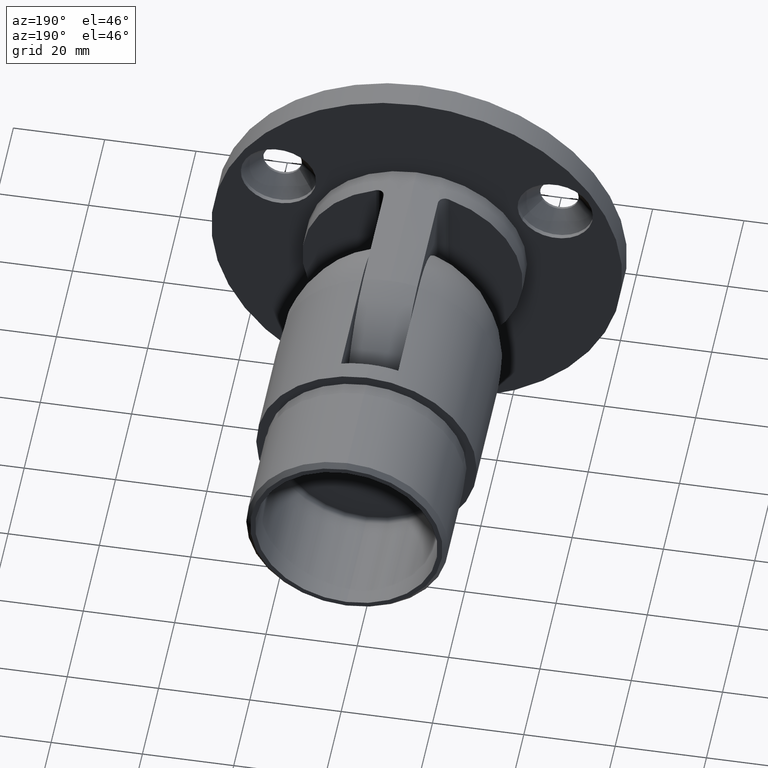
[diagram: clean part render]
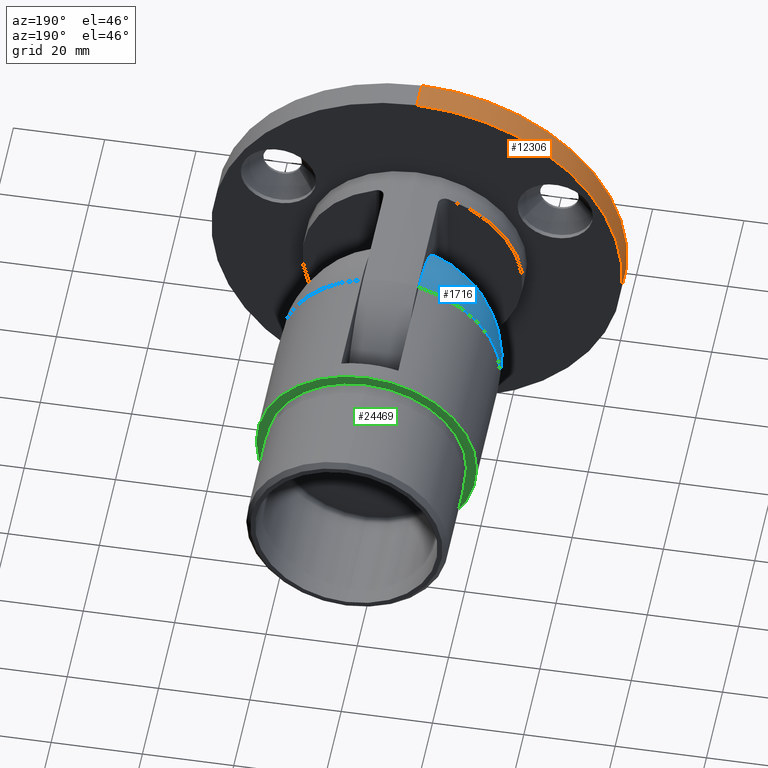
[diagram: same view with three faces highlighted in distinct colors, each labeled with its STEP entity id]
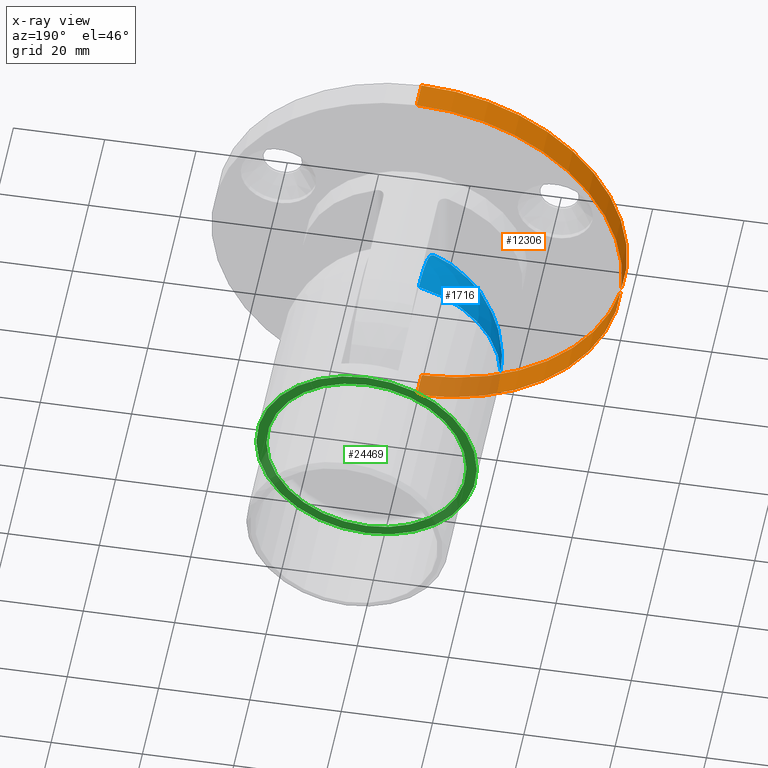
[diagram: x-ray of the same camera — body ghosted, the three highlighted faces saturated]
A machine part, auxiliary view with three faces highlighted in distinct colors.
The next image is the same camera in x-ray (body ghosted, the three faces saturated) — at least one of them is partly hidden behind the body in this view.
Their STEP definitions:

[orange] entity #12306 — the highlighted cylindrical surface (partial cylindrical patch) has radius 45 mm, axis along (-0, -1, -0).
#503 = FACE_OUTER_BOUND ( 'NONE', #15593, .T. ) ;
#1247 = EDGE_CURVE ( 'NONE', #6231, #18600, #16510, .T. ) ;
#1482 = EDGE_CURVE ( 'NONE', #6681, #4526, #10737, .T. ) ;
#1567 = DIRECTION ( 'NONE',  ( 0.000000000000000000, 0.000000000000000000, -1.000000000000000000 ) ) ;
#2335 = CYLINDRICAL_SURFACE ( 'NONE', #13331, 45.00000000000000711 ) ;
#3715 = CIRCLE ( 'NONE', #22963, 45.00000000000000711 ) ;
#4526 = VERTEX_POINT ( 'NONE', #23046 ) ;
#5730 = CARTESIAN_POINT ( 'NONE',  ( 0.000000000000000000, 6.000000000000000000, 0.000000000000000000 ) ) ;
#6142 = CARTESIAN_POINT ( 'NONE',  ( 0.000000000000000000, 6.000000000000000000, -45.00000000000000711 ) ) ;
#6231 = VERTEX_POINT ( 'NONE', #6142 ) ;
#6681 = VERTEX_POINT ( 'NONE', #21343 ) ;
#7238 = EDGE_CURVE ( 'NONE', #6231, #6681, #3715, .T. ) ;
#7377 = CARTESIAN_POINT ( 'NONE',  ( 0.000000000000000000, 6.000000000000000000, 0.000000000000000000 ) ) ;
#8443 = CARTESIAN_POINT ( 'NONE',  ( 0.000000000000000000, 6.000000000000000000, -45.00000000000000711 ) ) ;
#10339 = ORIENTED_EDGE ( 'NONE', *, *, #15903, .T. ) ;
#10737 = LINE ( 'NONE', #11356, #18898 ) ;
#11356 = CARTESIAN_POINT ( 'NONE',  ( 5.510910596163090344E-15, 6.000000000000000000, 45.00000000000000711 ) ) ;
#12306 = ADVANCED_FACE ( 'NONE', ( #503 ), #2335, .T. ) ;
#12524 = CIRCLE ( 'NONE', #17747, 45.00000000000000711 ) ;
#12779 = CARTESIAN_POINT ( 'NONE',  ( 0.000000000000000000, 0.000000000000000000, 0.000000000000000000 ) ) ;
#12871 = DIRECTION ( 'NONE',  ( 0.000000000000000000, 0.000000000000000000, 1.000000000000000000 ) ) ;
#12897 = DIRECTION ( 'NONE',  ( 0.000000000000000000, 1.000000000000000000, 0.000000000000000000 ) ) ;
#13013 = ORIENTED_EDGE ( 'NONE', *, *, #7238, .F. ) ;
#13331 = AXIS2_PLACEMENT_3D ( 'NONE', #5730, #23161, #1567 ) ;
#14890 = ORIENTED_EDGE ( 'NONE', *, *, #1247, .T. ) ;
#15326 = DIRECTION ( 'NONE',  ( -0.000000000000000000, -1.000000000000000000, -0.000000000000000000 ) ) ;
#15593 = EDGE_LOOP ( 'NONE', ( #23757, #13013, #14890, #10339 ) ) ;
#15903 = EDGE_CURVE ( 'NONE', #18600, #4526, #12524, .T. ) ;
#16510 = LINE ( 'NONE', #8443, #16787 ) ;
#16787 = VECTOR ( 'NONE', #18153, 1000.000000000000000 ) ;
#17019 = DIRECTION ( 'NONE',  ( 0.000000000000000000, 0.000000000000000000, 1.000000000000000000 ) ) ;
#17747 = AXIS2_PLACEMENT_3D ( 'NONE', #12779, #20560, #12871 ) ;
#18153 = DIRECTION ( 'NONE',  ( -0.000000000000000000, -1.000000000000000000, -0.000000000000000000 ) ) ;
#18600 = VERTEX_POINT ( 'NONE', #20311 ) ;
#18898 = VECTOR ( 'NONE', #15326, 1000.000000000000000 ) ;
#20311 = CARTESIAN_POINT ( 'NONE',  ( 0.000000000000000000, 0.000000000000000000, -45.00000000000000711 ) ) ;
#20560 = DIRECTION ( 'NONE',  ( 0.000000000000000000, 1.000000000000000000, 0.000000000000000000 ) ) ;
#21343 = CARTESIAN_POINT ( 'NONE',  ( 5.510910596163090344E-15, 6.000000000000000000, 45.00000000000000711 ) ) ;
#22963 = AXIS2_PLACEMENT_3D ( 'NONE', #7377, #12897, #17019 ) ;
#23046 = CARTESIAN_POINT ( 'NONE',  ( 5.510910596163090344E-15, 0.000000000000000000, 45.00000000000000711 ) ) ;
#23161 = DIRECTION ( 'NONE',  ( -0.000000000000000000, -1.000000000000000000, -0.000000000000000000 ) ) ;
#23757 = ORIENTED_EDGE ( 'NONE', *, *, #1482, .F. ) ;

[blue] entity #1716 — the highlighted spherical surface has radius 24.15 mm.
#753 = DIRECTION ( 'NONE',  ( 0.000000000000000000, 0.000000000000000000, 1.000000000000000000 ) ) ;
#1362 = ORIENTED_EDGE ( 'NONE', *, *, #22472, .T. ) ;
#1716 = ADVANCED_FACE ( 'NONE', ( #16482 ), #10449, .T. ) ;
#2721 = CARTESIAN_POINT ( 'NONE',  ( -24.14999999999999858, 24.15000000000000213, 0.000000000000000000 ) ) ;
#3070 = EDGE_CURVE ( 'NONE', #10316, #12904, #8251, .T. ) ;
#3379 = DIRECTION ( 'NONE',  ( -0.000000000000000000, -0.000000000000000000, -1.000000000000000000 ) ) ;
#3403 = CIRCLE ( 'NONE', #21283, 23.32723729891733200 ) ;
#5059 = ORIENTED_EDGE ( 'NONE', *, *, #13153, .F. ) ;
#5475 = CARTESIAN_POINT ( 'NONE',  ( 0.000000000000000000, 24.14999999999999858, 0.000000000000000000 ) ) ;
#7170 = DIRECTION ( 'NONE',  ( -1.000000000000000000, 0.000000000000000000, 0.000000000000000000 ) ) ;
#8251 = CIRCLE ( 'NONE', #25034, 24.15000000000000213 ) ;
#8384 = CARTESIAN_POINT ( 'NONE',  ( -6.249999999999995559, 0.8227627010826653597, 0.000000000000000000 ) ) ;
#9195 = CARTESIAN_POINT ( 'NONE',  ( 0.000000000000000000, 24.14999999999999858, 0.000000000000000000 ) ) ;
#10316 = VERTEX_POINT ( 'NONE', #23871 ) ;
#10449 = SPHERICAL_SURFACE ( 'NONE', #15774, 24.14999999999999858 ) ;
#10587 = DIRECTION ( 'NONE',  ( 1.000000000000000000, -0.000000000000000000, -0.000000000000000000 ) ) ;
#11161 = DIRECTION ( 'NONE',  ( -0.000000000000000000, 0.000000000000000000, 1.000000000000000000 ) ) ;
#12904 = VERTEX_POINT ( 'NONE', #2721 ) ;
#13041 = DIRECTION ( 'NONE',  ( 0.000000000000000000, 0.000000000000000000, -1.000000000000000000 ) ) ;
#13078 = ORIENTED_EDGE ( 'NONE', *, *, #3070, .T. ) ;
#13153 = EDGE_CURVE ( 'NONE', #10316, #17710, #3403, .T. ) ;
#14901 = CARTESIAN_POINT ( 'NONE',  ( 0.000000000000000000, 24.15000000000000213, 0.000000000000000000 ) ) ;
#15774 = AXIS2_PLACEMENT_3D ( 'NONE', #5475, #3379, #7170 ) ;
#16482 = FACE_OUTER_BOUND ( 'NONE', #20423, .T. ) ;
#17710 = VERTEX_POINT ( 'NONE', #8384 ) ;
#19371 = DIRECTION ( 'NONE',  ( -0.000000000000000000, -1.000000000000000000, -0.000000000000000000 ) ) ;
#20423 = EDGE_LOOP ( 'NONE', ( #13078, #1362, #5059 ) ) ;
#21102 = CIRCLE ( 'NONE', #25081, 24.14999999999999858 ) ;
#21283 = AXIS2_PLACEMENT_3D ( 'NONE', #24027, #10587, #753 ) ;
#22472 = EDGE_CURVE ( 'NONE', #12904, #17710, #21102, .T. ) ;
#23871 = CARTESIAN_POINT ( 'NONE',  ( -6.249999999999995559, 24.15000000000000213, 23.32723729891733200 ) ) ;
#24027 = CARTESIAN_POINT ( 'NONE',  ( -6.249999999999995559, 24.14999999999999858, 0.000000000000000000 ) ) ;
#24665 = DIRECTION ( 'NONE',  ( 1.000000000000000000, 0.000000000000000000, 0.000000000000000000 ) ) ;
#25034 = AXIS2_PLACEMENT_3D ( 'NONE', #14901, #19371, #13041 ) ;
#25081 = AXIS2_PLACEMENT_3D ( 'NONE', #9195, #11161, #24665 ) ;

[green] entity #24469 — the highlighted planar face has unit normal (0, 1, 0).
#26 = EDGE_CURVE ( 'NONE', #23918, #1114, #2638, .T. ) ;
#455 = EDGE_CURVE ( 'NONE', #1114, #23918, #15030, .T. ) ;
#1114 = VERTEX_POINT ( 'NONE', #21635 ) ;
#1195 = DIRECTION ( 'NONE',  ( 0.000000000000000000, 0.000000000000000000, -1.000000000000000000 ) ) ;
#2083 = AXIS2_PLACEMENT_3D ( 'NONE', #9561, #7525, #15564 ) ;
#2638 = CIRCLE ( 'NONE', #13328, 24.14999999999999858 ) ;
#3166 = DIRECTION ( 'NONE',  ( -0.000000000000000000, -1.000000000000000000, -0.000000000000000000 ) ) ;
#3652 = ORIENTED_EDGE ( 'NONE', *, *, #455, .F. ) ;
#4548 = CIRCLE ( 'NONE', #2083, 21.90000000000000568 ) ;
#5156 = DIRECTION ( 'NONE',  ( 0.000000000000000000, 0.000000000000000000, 1.000000000000000000 ) ) ;
#5299 = EDGE_LOOP ( 'NONE', ( #21936, #3652 ) ) ;
#5545 = CARTESIAN_POINT ( 'NONE',  ( 0.000000000000000000, 53.65000000000000568, 0.000000000000000000 ) ) ;
#7201 = DIRECTION ( 'NONE',  ( 0.000000000000000000, 0.000000000000000000, -1.000000000000000000 ) ) ;
#7525 = DIRECTION ( 'NONE',  ( 0.000000000000000000, 1.000000000000000000, 0.000000000000000000 ) ) ;
#9561 = CARTESIAN_POINT ( 'NONE',  ( 0.000000000000000000, 53.65000000000000568, 0.000000000000000000 ) ) ;
#10716 = CARTESIAN_POINT ( 'NONE',  ( 0.000000000000000000, 53.65000000000000568, 0.000000000000000000 ) ) ;
#10771 = FACE_OUTER_BOUND ( 'NONE', #5299, .T. ) ;
#10933 = AXIS2_PLACEMENT_3D ( 'NONE', #13018, #11167, #11242 ) ;
#11167 = DIRECTION ( 'NONE',  ( 0.000000000000000000, 1.000000000000000000, 0.000000000000000000 ) ) ;
#11242 = DIRECTION ( 'NONE',  ( 0.000000000000000000, -0.000000000000000000, 1.000000000000000000 ) ) ;
#12044 = AXIS2_PLACEMENT_3D ( 'NONE', #14903, #3166, #7201 ) ;
#12350 = EDGE_CURVE ( 'NONE', #24209, #19370, #14752, .T. ) ;
#13018 = CARTESIAN_POINT ( 'NONE',  ( 0.000000000000000000, 53.65000000000000568, 0.000000000000000000 ) ) ;
#13328 = AXIS2_PLACEMENT_3D ( 'NONE', #10716, #16616, #1195 ) ;
#14105 = ORIENTED_EDGE ( 'NONE', *, *, #12350, .F. ) ;
#14752 = CIRCLE ( 'NONE', #16726, 21.90000000000000568 ) ;
#14903 = CARTESIAN_POINT ( 'NONE',  ( 0.000000000000000000, 53.65000000000000568, 0.000000000000000000 ) ) ;
#15030 = CIRCLE ( 'NONE', #12044, 24.14999999999999858 ) ;
#15212 = PLANE ( 'NONE',  #10933 ) ;
#15564 = DIRECTION ( 'NONE',  ( 0.000000000000000000, 0.000000000000000000, 1.000000000000000000 ) ) ;
#16447 = DIRECTION ( 'NONE',  ( 0.000000000000000000, 1.000000000000000000, 0.000000000000000000 ) ) ;
#16616 = DIRECTION ( 'NONE',  ( -0.000000000000000000, -1.000000000000000000, -0.000000000000000000 ) ) ;
#16726 = AXIS2_PLACEMENT_3D ( 'NONE', #5545, #16447, #5156 ) ;
#16809 = EDGE_LOOP ( 'NONE', ( #22832, #14105 ) ) ;
#18335 = FACE_BOUND ( 'NONE', #16809, .T. ) ;
#19370 = VERTEX_POINT ( 'NONE', #21525 ) ;
#20038 = EDGE_CURVE ( 'NONE', #19370, #24209, #4548, .T. ) ;
#21089 = CARTESIAN_POINT ( 'NONE',  ( 2.681976490132704241E-15, 53.65000000000000568, 21.90000000000000568 ) ) ;
#21191 = CARTESIAN_POINT ( 'NONE',  ( 0.000000000000000000, 53.65000000000000568, -24.14999999999999858 ) ) ;
#21525 = CARTESIAN_POINT ( 'NONE',  ( 0.000000000000000000, 53.65000000000000568, -21.90000000000000568 ) ) ;
#21635 = CARTESIAN_POINT ( 'NONE',  ( 2.957522019940857930E-15, 53.65000000000000568, 24.14999999999999858 ) ) ;
#21936 = ORIENTED_EDGE ( 'NONE', *, *, #26, .F. ) ;
#22832 = ORIENTED_EDGE ( 'NONE', *, *, #20038, .F. ) ;
#23918 = VERTEX_POINT ( 'NONE', #21191 ) ;
#24209 = VERTEX_POINT ( 'NONE', #21089 ) ;
#24469 = ADVANCED_FACE ( 'NONE', ( #18335, #10771 ), #15212, .T. ) ;